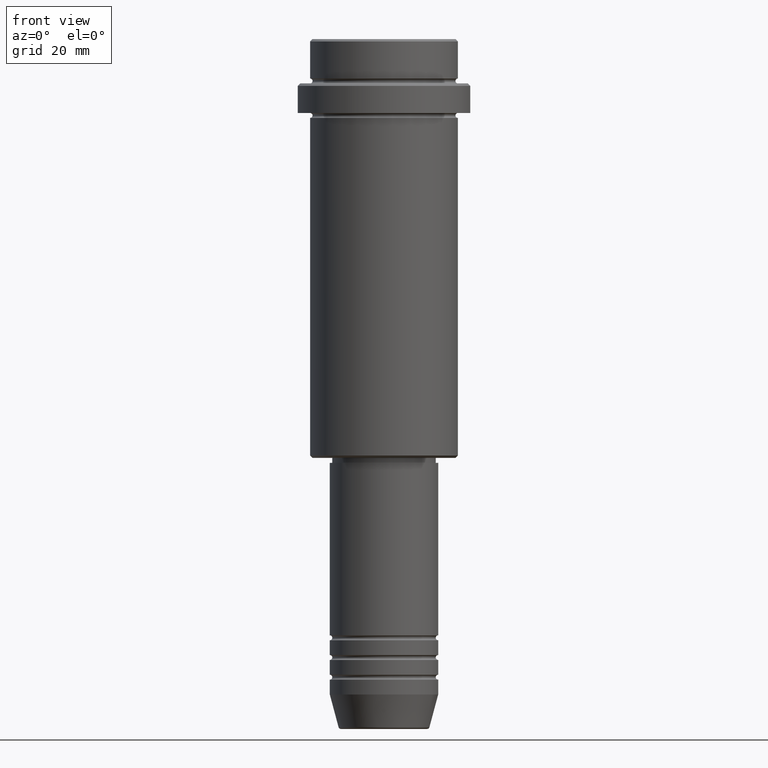
[diagram: clean part render]
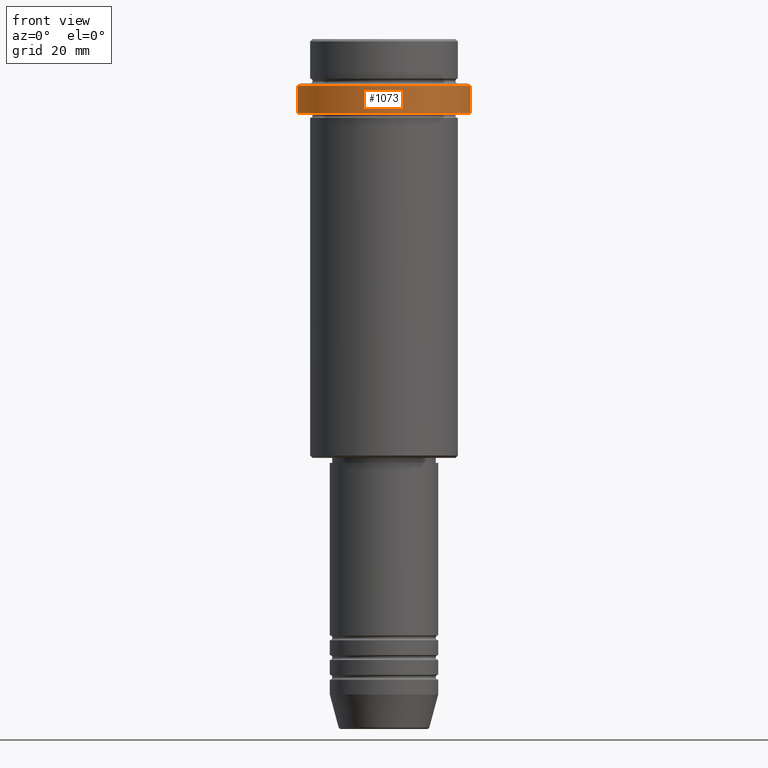
[diagram: same view with one face highlighted and labeled with its STEP entity id]
A machine part, front view. The second image highlights one B-rep face of the part: STEP entity #1073.
In plain terms, the highlighted cylindrical surface (partial cylindrical patch) has radius 17.5 mm, axis along (-0, -0, 1).
Its self-contained STEP definition (entity closure, byte-faithful):
#8 = EDGE_CURVE ( 'NONE', #848, #540, #1286, .T. ) ;
#81 = CYLINDRICAL_SURFACE ( 'NONE', #856, 17.50000000000000000 ) ;
#172 = EDGE_LOOP ( 'NONE', ( #421, #1239, #706, #748 ) ) ;
#199 = CIRCLE ( 'NONE', #827, 17.50000000000000000 ) ;
#223 = EDGE_CURVE ( 'NONE', #540, #1040, #877, .T. ) ;
#259 = DIRECTION ( 'NONE',  ( -0.000000000000000000, -0.000000000000000000, 1.000000000000000000 ) ) ;
#309 = DIRECTION ( 'NONE',  ( 1.000000000000000000, 0.000000000000000000, 0.000000000000000000 ) ) ;
#314 = VECTOR ( 'NONE', #415, 1000.000000000000000 ) ;
#347 = EDGE_CURVE ( 'NONE', #929, #848, #199, .T. ) ;
#402 = CARTESIAN_POINT ( 'NONE',  ( 17.50000000000000000, 0.000000000000000000, 0.000000000000000000 ) ) ;
#415 = DIRECTION ( 'NONE',  ( -0.000000000000000000, -0.000000000000000000, 1.000000000000000000 ) ) ;
#421 = ORIENTED_EDGE ( 'NONE', *, *, #943, .F. ) ;
#422 = CARTESIAN_POINT ( 'NONE',  ( 0.000000000000000000, 0.000000000000000000, 0.000000000000000000 ) ) ;
#481 = DIRECTION ( 'NONE',  ( 0.000000000000000000, 0.000000000000000000, -1.000000000000000000 ) ) ;
#512 = CARTESIAN_POINT ( 'NONE',  ( 0.000000000000000000, 0.000000000000000000, -15.00000000000000000 ) ) ;
#540 = VERTEX_POINT ( 'NONE', #1356 ) ;
#610 = DIRECTION ( 'NONE',  ( 1.000000000000000000, 0.000000000000000000, 0.000000000000000000 ) ) ;
#623 = CARTESIAN_POINT ( 'NONE',  ( 0.000000000000000000, 0.000000000000000000, -9.500000000000000000 ) ) ;
#650 = FACE_OUTER_BOUND ( 'NONE', #172, .T. ) ;
#684 = CARTESIAN_POINT ( 'NONE',  ( -17.50000000000000000, 2.143131898507868248E-15, -15.00000000000000000 ) ) ;
#706 = ORIENTED_EDGE ( 'NONE', *, *, #8, .T. ) ;
#748 = ORIENTED_EDGE ( 'NONE', *, *, #223, .T. ) ;
#827 = AXIS2_PLACEMENT_3D ( 'NONE', #512, #1183, #1392 ) ;
#848 = VERTEX_POINT ( 'NONE', #1296 ) ;
#856 = AXIS2_PLACEMENT_3D ( 'NONE', #422, #866, #309 ) ;
#866 = DIRECTION ( 'NONE',  ( -0.000000000000000000, -0.000000000000000000, 1.000000000000000000 ) ) ;
#877 = CIRCLE ( 'NONE', #1281, 17.50000000000000000 ) ;
#929 = VERTEX_POINT ( 'NONE', #684 ) ;
#943 = EDGE_CURVE ( 'NONE', #929, #1040, #1346, .T. ) ;
#993 = VECTOR ( 'NONE', #259, 1000.000000000000000 ) ;
#1040 = VERTEX_POINT ( 'NONE', #1101 ) ;
#1073 = ADVANCED_FACE ( 'NONE', ( #650 ), #81, .T. ) ;
#1101 = CARTESIAN_POINT ( 'NONE',  ( -17.50000000000000000, 2.143131898507868248E-15, -9.500000000000000000 ) ) ;
#1183 = DIRECTION ( 'NONE',  ( -0.000000000000000000, -0.000000000000000000, 1.000000000000000000 ) ) ;
#1218 = CARTESIAN_POINT ( 'NONE',  ( -17.50000000000000000, 2.143131898507868248E-15, 0.000000000000000000 ) ) ;
#1239 = ORIENTED_EDGE ( 'NONE', *, *, #347, .T. ) ;
#1281 = AXIS2_PLACEMENT_3D ( 'NONE', #623, #481, #610 ) ;
#1286 = LINE ( 'NONE', #402, #314 ) ;
#1296 = CARTESIAN_POINT ( 'NONE',  ( 17.50000000000000000, 0.000000000000000000, -15.00000000000000000 ) ) ;
#1346 = LINE ( 'NONE', #1218, #993 ) ;
#1356 = CARTESIAN_POINT ( 'NONE',  ( 17.50000000000000000, 0.000000000000000000, -9.500000000000000000 ) ) ;
#1392 = DIRECTION ( 'NONE',  ( 1.000000000000000000, 0.000000000000000000, 0.000000000000000000 ) ) ;